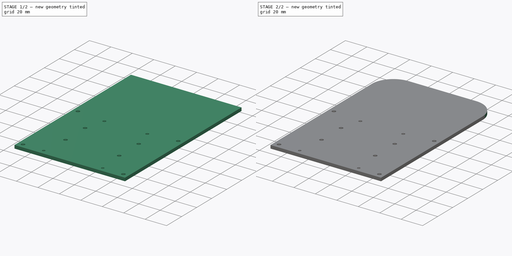
[diagram: build sequence overview — one tinted view per stage of 2, left to right]
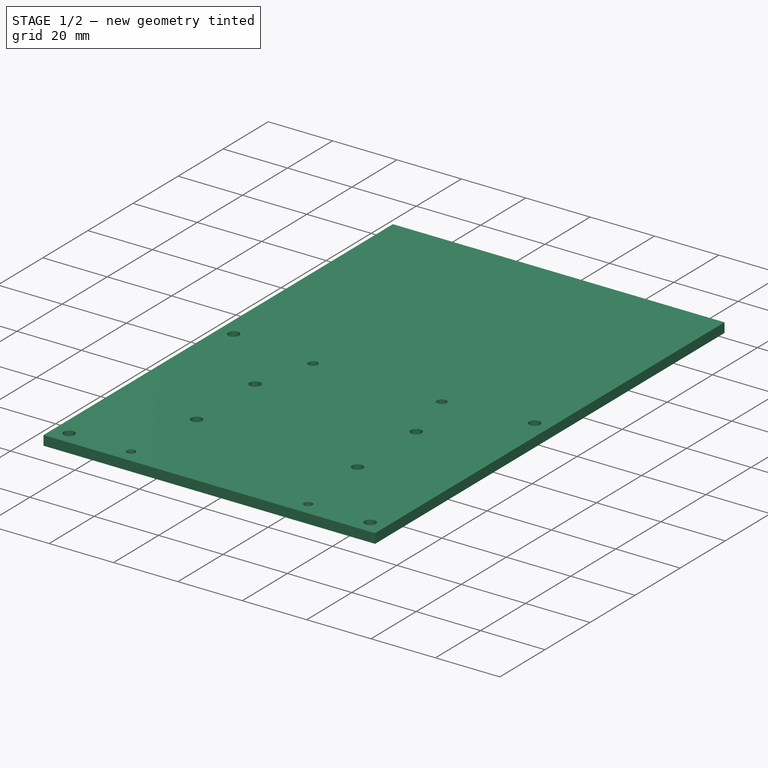
[diagram: stage 1 of 2 — iso view after this stage's code; geometry added in this stage tinted green]
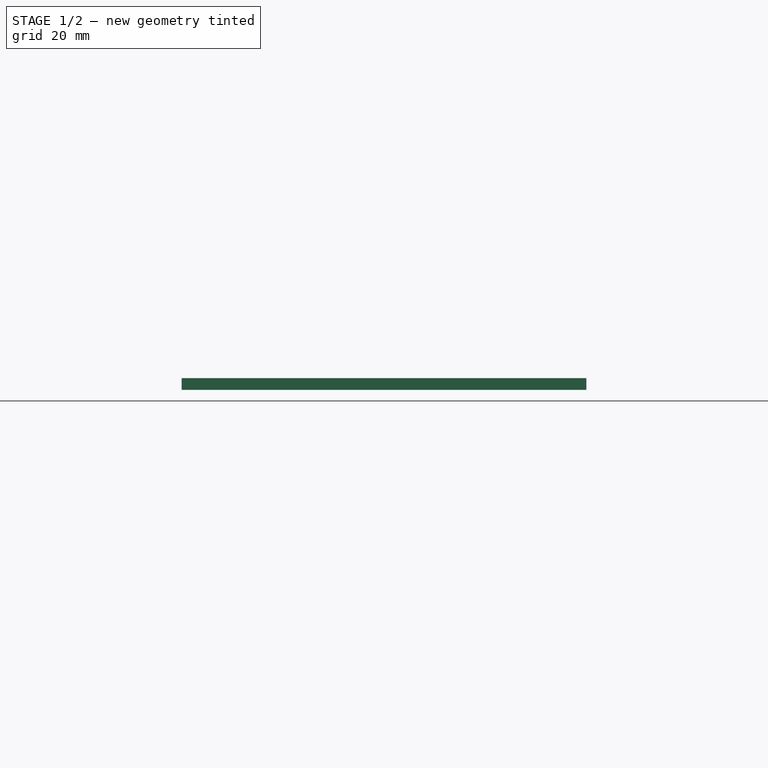
[diagram: stage 1 of 2 — front view after this stage's code; geometry added in this stage tinted green]
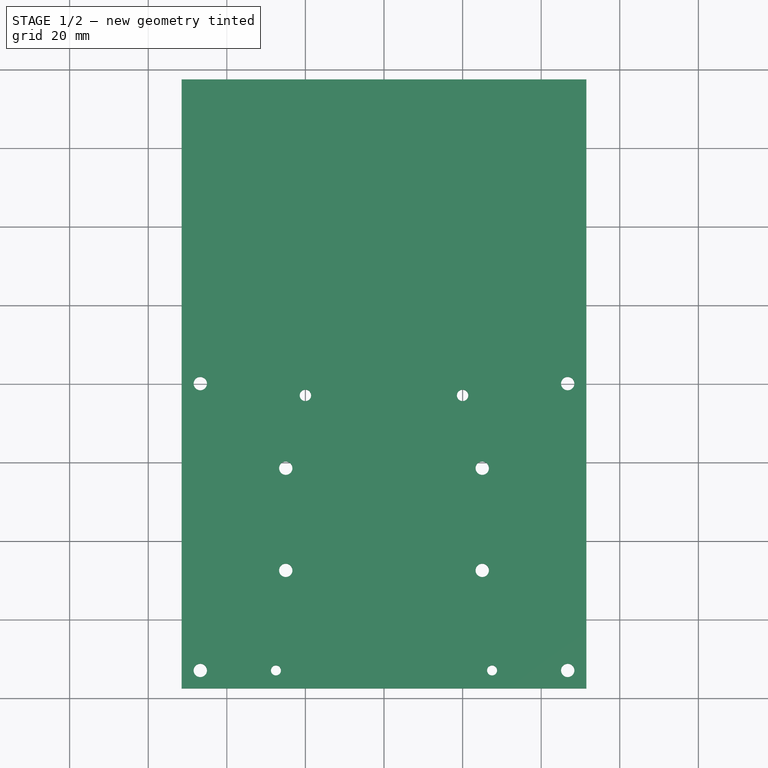
[diagram: stage 1 of 2 — top view after this stage's code; geometry added in this stage tinted green]
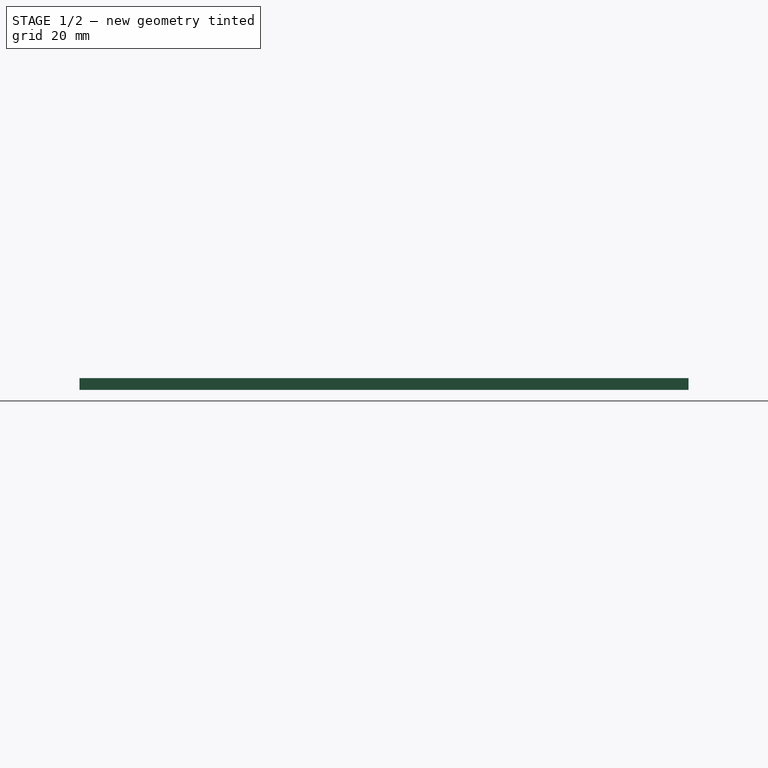
[diagram: stage 1 of 2 — right view after this stage's code; geometry added in this stage tinted green]
FCSTD DOCUMENT  (FreeCAD 1.0R39109 (Git))
Label: Chasis_001
License: All rights reserved
LicenseURL: https://en.wikipedia.org/wiki/All_rights_reserved
objects: Sketcher::SketchObject×1, PartDesign::Pad×1, PartDesign::Fillet×1, PartDesign::Body×1
note: 9 computed .brp shape members not serialized (recipe doc carries the construction recipe); baked Part::Feature solids carry a one-line shape summary decoded from their .brp

FEATURE [Sketcher::SketchObject] Sketch
  ArcFitTolerance = 1e-06
  AttachmentSupport = -> [XY_Plane]
  FullyConstrained = false
  MakeInternals = false
  MapMode = 5
  expr: Constraints[15] = .Constraints.M25
  expr: Constraints[43] = .Constraints.M3
  expr: Constraints[45] = .Constraints.M3
  expr: Constraints[47] = .Constraints.M3
  expr: Constraints[63] = .Constraints.M3
  expr: Constraints[64] = .Constraints.M3
  expr: Constraints[65] = .Constraints.M3
  expr: Constraints[66] = .Constraints.M3
  sketch-geometry (31):
    g0: LineSegment StartX=-51.5 StartY=77.5 StartZ=0 EndX=-51.5 EndY=-77.5 EndZ=0
    g1: LineSegment StartX=-51.5 StartY=-77.5 StartZ=0 EndX=51.5 EndY=-77.5 EndZ=0
    g2: LineSegment StartX=51.5 StartY=-77.5 StartZ=0 EndX=51.5 EndY=77.5 EndZ=0
    g3: LineSegment StartX=51.5 StartY=77.5 StartZ=0 EndX=-51.5 EndY=77.5 EndZ=0
    g4: GeomPoint [constr] X=0 Y=0 Z=0
    g5: Circle CenterX=-27.5 CenterY=-72.9142 CenterZ=0 NormalX=0 NormalY=0 NormalZ=1 AngleXU=0 Radius=1.275
    g6: Circle CenterX=27.5 CenterY=-72.9142 CenterZ=0 NormalX=0 NormalY=0 NormalZ=1 AngleXU=0 Radius=1.275
    g7: Circle CenterX=-20 CenterY=-2.91422 CenterZ=0 NormalX=0 NormalY=0 NormalZ=1 AngleXU=0 Radius=1.45
    g8: Circle CenterX=20 CenterY=-2.91422 CenterZ=0 NormalX=0 NormalY=0 NormalZ=1 AngleXU=0 Radius=1.45
    g9: GeomPoint [constr] X=0 Y=-34.7313 Z=0
    g10: LineSegment [constr] StartX=-20 StartY=-2.91422 StartZ=0 EndX=20 EndY=-2.91422 EndZ=0
    g11: LineSegment [constr] StartX=20 StartY=-2.91422 StartZ=0 EndX=27.5 EndY=-72.9142 EndZ=0
    g12: LineSegment [constr] StartX=27.5 StartY=-72.9142 StartZ=0 EndX=-27.5 EndY=-72.9142 EndZ=0
    g13: LineSegment [constr] StartX=-27.5 StartY=-72.9142 StartZ=0 EndX=-20 EndY=-2.91422 EndZ=0
    g14: LineSegment [constr] StartX=0 StartY=0 StartZ=0 EndX=2.5e-15 EndY=-77.5 EndZ=0
    g15: LineSegment [constr] StartX=-46.75 StartY=0.0857803 StartZ=0 EndX=-46.75 EndY=-72.9142 EndZ=0
    g16: LineSegment [constr] StartX=-46.75 StartY=-72.9142 StartZ=0 EndX=46.75 EndY=-72.9142 EndZ=0
    g17: LineSegment [constr] StartX=46.75 StartY=-72.9142 StartZ=0 EndX=46.75 EndY=0.0857803 EndZ=0
    g18: LineSegment [constr] StartX=46.75 StartY=0.0857803 StartZ=0 EndX=-46.75 EndY=0.0857803 EndZ=0
    g19: Circle CenterX=-46.75 CenterY=0.0857803 CenterZ=0 NormalX=0 NormalY=0 NormalZ=1 AngleXU=0 Radius=1.7
    g20: Circle CenterX=-46.75 CenterY=-72.9142 CenterZ=0 NormalX=0 NormalY=0 NormalZ=1 AngleXU=0 Radius=1.7
    g21: Circle CenterX=46.75 CenterY=-72.9142 CenterZ=0 NormalX=0 NormalY=0 NormalZ=1 AngleXU=0 Radius=1.7
    g22: Circle CenterX=46.75 CenterY=0.0857803 CenterZ=0 NormalX=0 NormalY=0 NormalZ=1 AngleXU=0 Radius=1.7
    g23: LineSegment [constr] StartX=-25 StartY=-21.4429 StartZ=0 EndX=-25 EndY=-47.4429 EndZ=0
    g24: LineSegment [constr] StartX=-25 StartY=-47.4429 StartZ=0 EndX=25 EndY=-47.4429 EndZ=0
    g25: LineSegment [constr] StartX=25 StartY=-47.4429 StartZ=0 EndX=25 EndY=-21.4429 EndZ=0
    g26: LineSegment [constr] StartX=25 StartY=-21.4429 StartZ=0 EndX=-25 EndY=-21.4429 EndZ=0
    g27: Circle CenterX=-25 CenterY=-21.4429 CenterZ=0 NormalX=0 NormalY=0 NormalZ=1 AngleXU=0 Radius=1.7
    g28: Circle CenterX=-25 CenterY=-47.4429 CenterZ=0 NormalX=0 NormalY=0 NormalZ=1 AngleXU=0 Radius=1.7
    g29: Circle CenterX=25 CenterY=-21.4429 CenterZ=0 NormalX=0 NormalY=0 NormalZ=1 AngleXU=0 Radius=1.7
    g30: Circle CenterX=25 CenterY=-47.4429 CenterZ=0 NormalX=0 NormalY=0 NormalZ=1 AngleXU=0 Radius=1.7
  constraints (68):
    c: Coincident(g0,g1)
    c: Coincident(g1,g2)
    c: Coincident(g2,g3)
    c: Coincident(g3,g0)
    c: Vertical(g0)
    c: Vertical(g2)
    c: Horizontal(g1)
    c: Horizontal(g3)
    c: Symmetric(g2,g0,g4)
    c: Coincident(g4,g-1)
    c: DistanceY(g2,g2) = 155
    c: DistanceX(g3,g3) = 103
    c: Diameter(g5) = 2.55
    c: Diameter(g6) = 2.55
    c: Diameter(g7) = 2.9  'M25'
    c: Diameter(g8) = 2.9
    c: DistanceX(g5,g6) = 55
    c: DistanceX(g7,g8) = 40
    c: DistanceY(g6,g8) = 70
    c: PointOnObject(g9,g-2)
    c: Coincident(g10,g7)
    c: Coincident(g10,g8)
    c: Coincident(g11,g8)
    c: Coincident(g11,g6)
    c: Coincident(g12,g6)
    c: Coincident(g12,g5)
    c: Coincident(g13,g5)
    c: Coincident(g13,g7)
    c: Coincident(g14,g4)
    c: Symmetric(g1,g1,g14)
    c: Symmetric(g7,g8,g14)
    c: Symmetric(g5,g6,g14)
    c: Coincident(g15,g16)
    c: Coincident(g16,g17)
    c: Coincident(g17,g18)
    c: Coincident(g18,g15)
    c: Vertical(g15)
    c: Vertical(g17)
    c: DistanceY(g16,g17) = 73
    c: DistanceX(g15,g17) = 93.5
    c: Symmetric(g15,g17,g14)
    c: Diameter(g19) = 3.4  'M3'
    c: Coincident(g19,g15)
    c: Diameter(g20) = 3.4
    c: Coincident(g20,g15)
    c: Diameter(g21) = 3.4
    c: Coincident(g21,g16)
    c: Diameter(g22) = 3.4
    c: Coincident(g22,g17)
    c: Coincident(g23,g24)
    c: Coincident(g24,g25)
    c: Coincident(g25,g26)
    c: Coincident(g26,g23)
    c: Vertical(g23)
    c: Vertical(g25)
    c: Horizontal(g24)
    c: Distance(g23,g25) = 50
    c: DistanceY(g24,g25) = 26
    c: Symmetric(g25,g23,g14)
    c: Coincident(g27,g23)
    c: Coincident(g28,g23)
    c: Coincident(g29,g25)
    c: Coincident(g30,g24)
    c: Diameter(g29) = 3.4
    c: Diameter(g27) = 3.4
    c: Diameter(g30) = 3.4
    c: Diameter(g28) = 3.4
    c: Tangent(g12,g16)
FEATURE [PartDesign::Pad] Pad
  Direction = (0,0,1)
  Length = 3
  Length2 = 10
  Profile = -> Sketch
  ReferenceAxis = -> Sketch [N_Axis]
  Refine = true
  Suppressed = false
  Type = 0
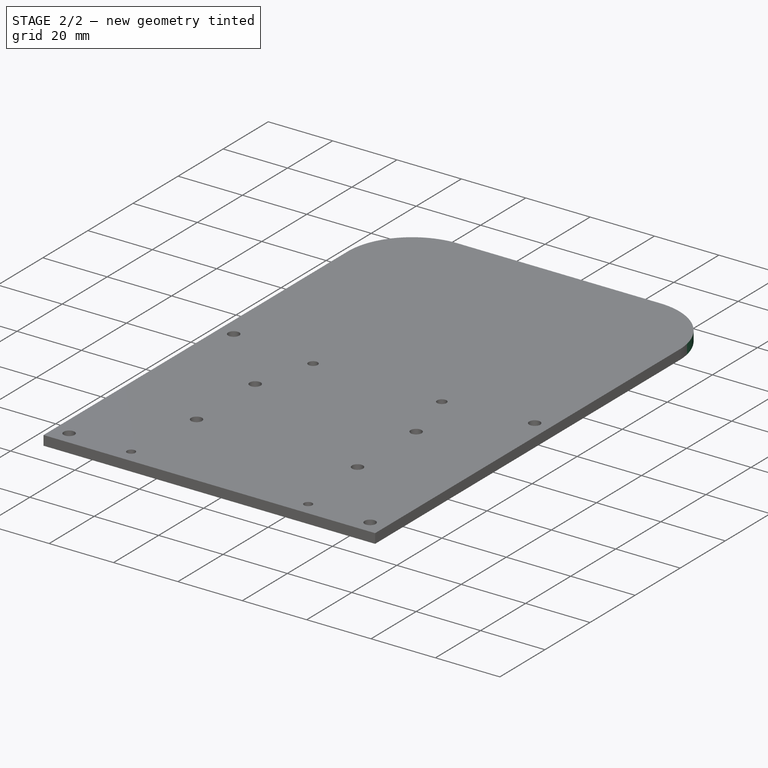
[diagram: stage 2 of 2 — iso view after this stage's code; geometry added in this stage tinted green]
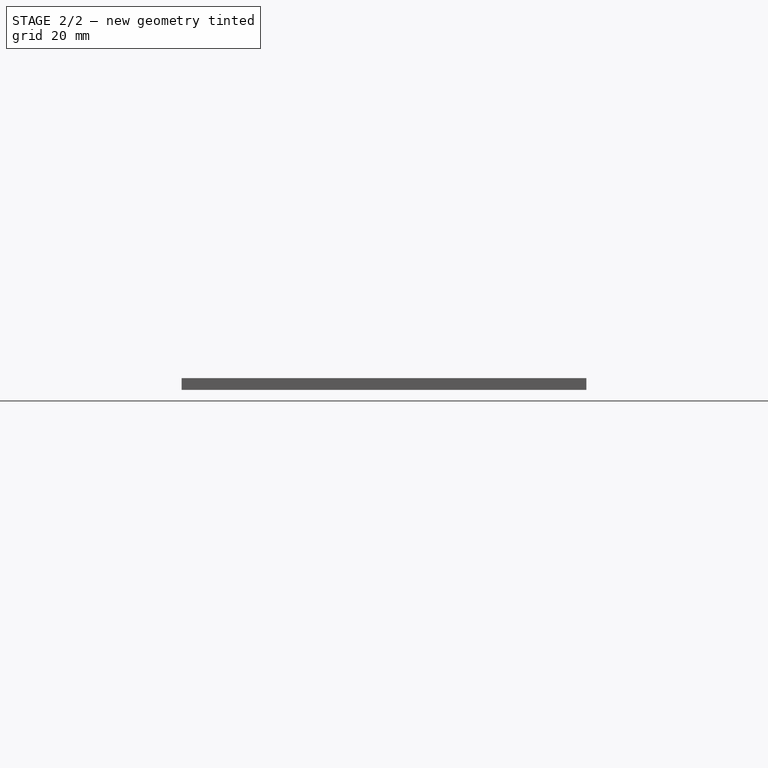
[diagram: stage 2 of 2 — front view after this stage's code; geometry added in this stage tinted green]
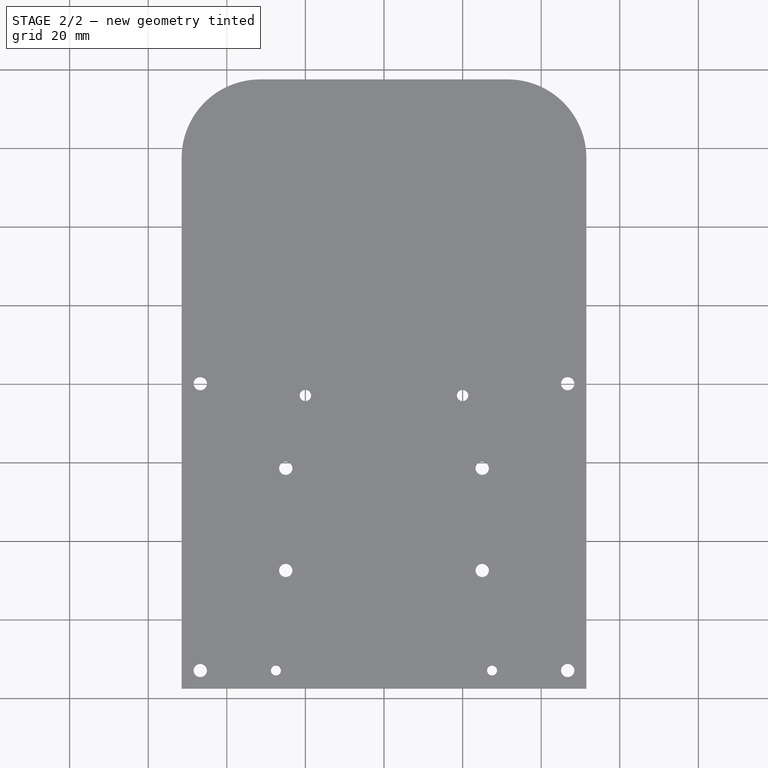
[diagram: stage 2 of 2 — top view after this stage's code; geometry added in this stage tinted green]
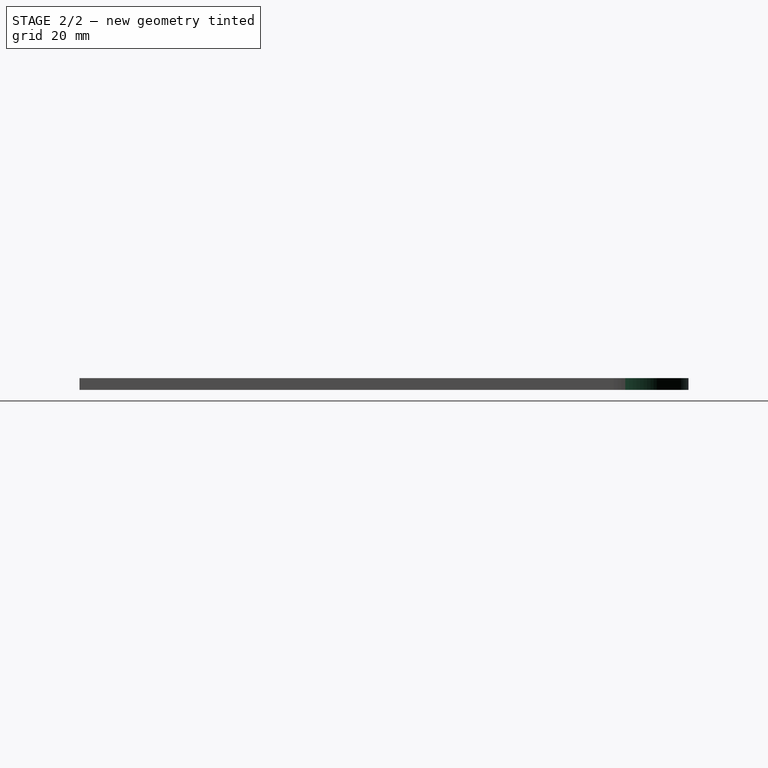
[diagram: stage 2 of 2 — right view after this stage's code; geometry added in this stage tinted green]
FEATURE [PartDesign::Fillet] Fillet
  Base = -> Pad [Edge1,Edge8]
  BaseFeature = -> Pad
  Radius = 20
  Refine = true
  SupportTransform = false
  Suppressed = false
  UseAllEdges = false
FEATURE [PartDesign::Body] Body
  AllowCompound = false
  Group = -> [Sketch,Pad,Fillet]
  Origin = -> Origin
  Tip = -> Fillet
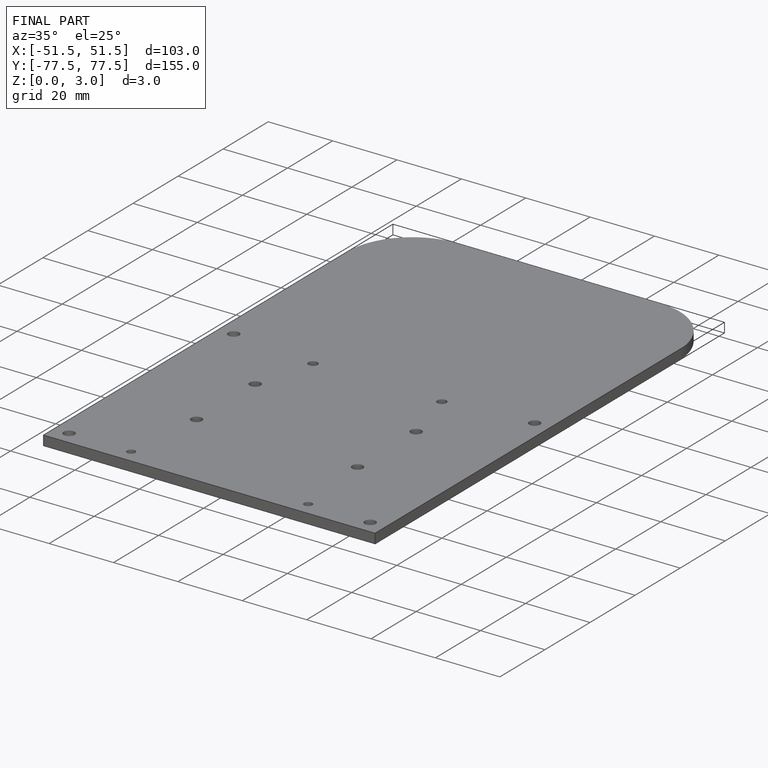
[diagram: finished part — iso view with bounding-box wireframe]
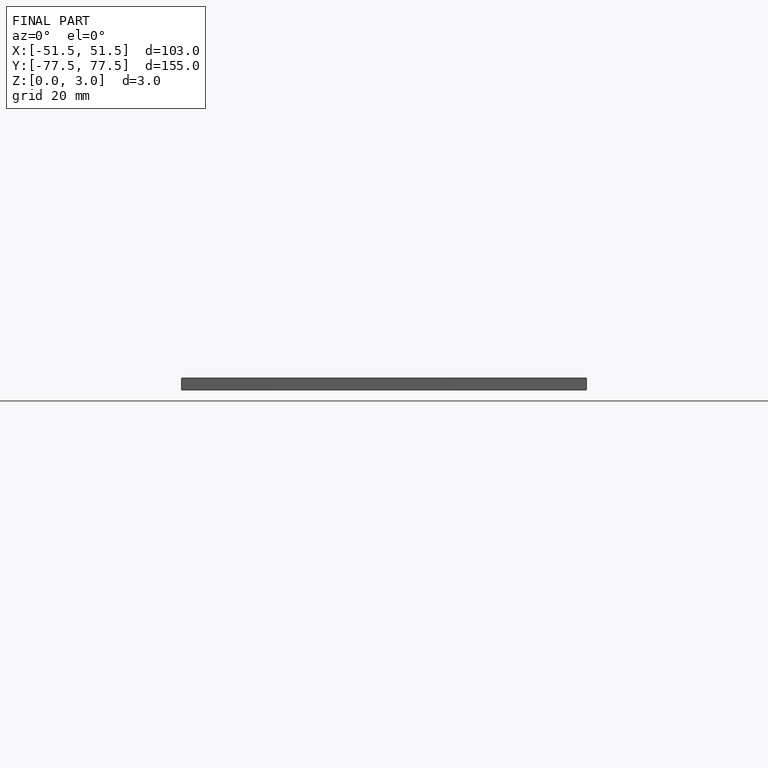
[diagram: finished part — front view with bounding-box wireframe]
